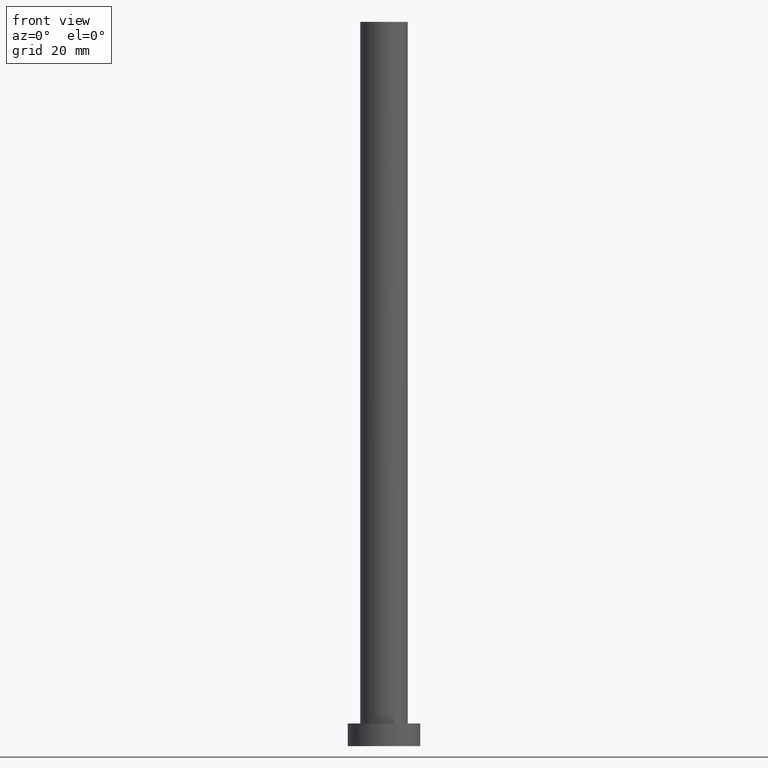
[diagram: clean part render]
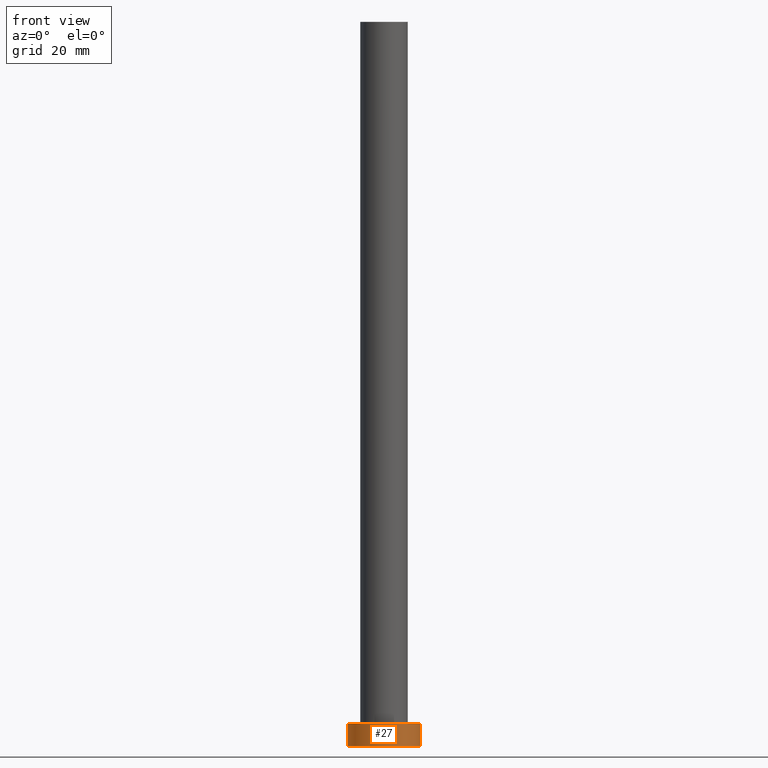
[diagram: same view with one face highlighted and labeled with its STEP entity id]
A machine part, front view. The second image highlights one B-rep face of the part: STEP entity #27.
In plain terms, the highlighted cylindrical surface (edge-blend (fillet) strip) has radius 8 mm, axis along (-0, -0, -1).
Its self-contained STEP definition (entity closure, byte-faithful):
#4 = CIRCLE ( 'NONE', #49, 8.000000000000000000 ) ;
#5 = CARTESIAN_POINT ( 'NONE',  ( 8.000000000000000000, 9.797174393178825657E-16, 0.000000000000000000 ) ) ;
#6 = FACE_OUTER_BOUND ( 'NONE', #244, .T. ) ;
#10 = CARTESIAN_POINT ( 'NONE',  ( -8.000000000000000000, 0.000000000000000000, 5.000000000000000000 ) ) ;
#25 = VERTEX_POINT ( 'NONE', #10 ) ;
#27 = ADVANCED_FACE ( 'NONE', ( #6 ), #90, .T. ) ;
#48 = VERTEX_POINT ( 'NONE', #65 ) ;
#49 = AXIS2_PLACEMENT_3D ( 'NONE', #168, #113, #132 ) ;
#53 = DIRECTION ( 'NONE',  ( -0.000000000000000000, -0.000000000000000000, -1.000000000000000000 ) ) ;
#55 = DIRECTION ( 'NONE',  ( -0.000000000000000000, -0.000000000000000000, -1.000000000000000000 ) ) ;
#65 = CARTESIAN_POINT ( 'NONE',  ( -8.000000000000000000, 0.000000000000000000, 0.000000000000000000 ) ) ;
#67 = CARTESIAN_POINT ( 'NONE',  ( 8.000000000000000000, 9.797174393178825657E-16, 5.000000000000000000 ) ) ;
#71 = CARTESIAN_POINT ( 'NONE',  ( -8.000000000000000000, 0.000000000000000000, 5.000000000000000000 ) ) ;
#83 = VERTEX_POINT ( 'NONE', #5 ) ;
#84 = CARTESIAN_POINT ( 'NONE',  ( 8.000000000000000000, 9.797174393178825657E-16, 5.000000000000000000 ) ) ;
#90 = CYLINDRICAL_SURFACE ( 'NONE', #222, 8.000000000000000000 ) ;
#91 = AXIS2_PLACEMENT_3D ( 'NONE', #152, #223, #131 ) ;
#110 = VECTOR ( 'NONE', #53, 1000.000000000000000 ) ;
#113 = DIRECTION ( 'NONE',  ( 0.000000000000000000, 0.000000000000000000, 1.000000000000000000 ) ) ;
#117 = EDGE_CURVE ( 'NONE', #165, #83, #234, .T. ) ;
#120 = DIRECTION ( 'NONE',  ( -1.000000000000000000, 0.000000000000000000, 0.000000000000000000 ) ) ;
#123 = CIRCLE ( 'NONE', #91, 8.000000000000000000 ) ;
#130 = EDGE_CURVE ( 'NONE', #25, #48, #133, .T. ) ;
#131 = DIRECTION ( 'NONE',  ( 1.000000000000000000, 0.000000000000000000, 0.000000000000000000 ) ) ;
#132 = DIRECTION ( 'NONE',  ( 1.000000000000000000, 0.000000000000000000, 0.000000000000000000 ) ) ;
#133 = LINE ( 'NONE', #71, #110 ) ;
#139 = EDGE_CURVE ( 'NONE', #48, #83, #123, .T. ) ;
#141 = ORIENTED_EDGE ( 'NONE', *, *, #139, .T. ) ;
#147 = CARTESIAN_POINT ( 'NONE',  ( 0.000000000000000000, 0.000000000000000000, 5.000000000000000000 ) ) ;
#152 = CARTESIAN_POINT ( 'NONE',  ( 0.000000000000000000, 0.000000000000000000, 0.000000000000000000 ) ) ;
#165 = VERTEX_POINT ( 'NONE', #84 ) ;
#168 = CARTESIAN_POINT ( 'NONE',  ( 0.000000000000000000, 0.000000000000000000, 5.000000000000000000 ) ) ;
#180 = ORIENTED_EDGE ( 'NONE', *, *, #117, .F. ) ;
#185 = ORIENTED_EDGE ( 'NONE', *, *, #130, .T. ) ;
#203 = EDGE_CURVE ( 'NONE', #25, #165, #4, .T. ) ;
#205 = VECTOR ( 'NONE', #55, 1000.000000000000000 ) ;
#221 = DIRECTION ( 'NONE',  ( -0.000000000000000000, -0.000000000000000000, -1.000000000000000000 ) ) ;
#222 = AXIS2_PLACEMENT_3D ( 'NONE', #147, #221, #120 ) ;
#223 = DIRECTION ( 'NONE',  ( 0.000000000000000000, 0.000000000000000000, 1.000000000000000000 ) ) ;
#233 = ORIENTED_EDGE ( 'NONE', *, *, #203, .F. ) ;
#234 = LINE ( 'NONE', #67, #205 ) ;
#244 = EDGE_LOOP ( 'NONE', ( #180, #233, #185, #141 ) ) ;